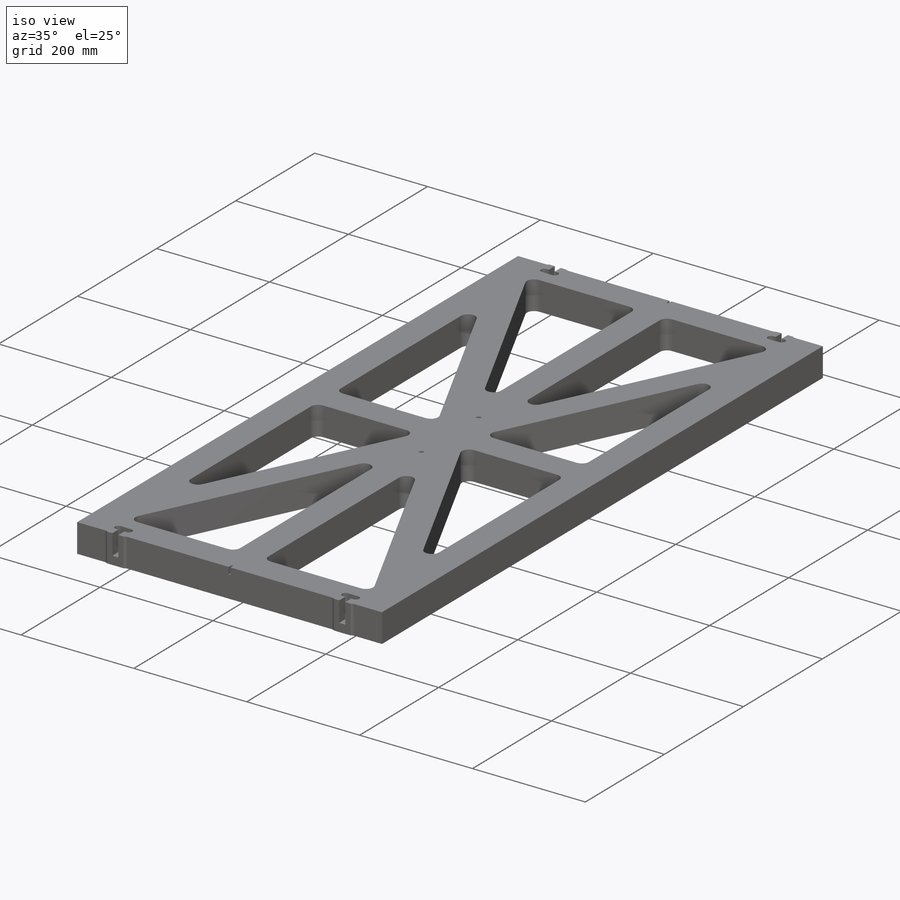
[diagram: iso view]
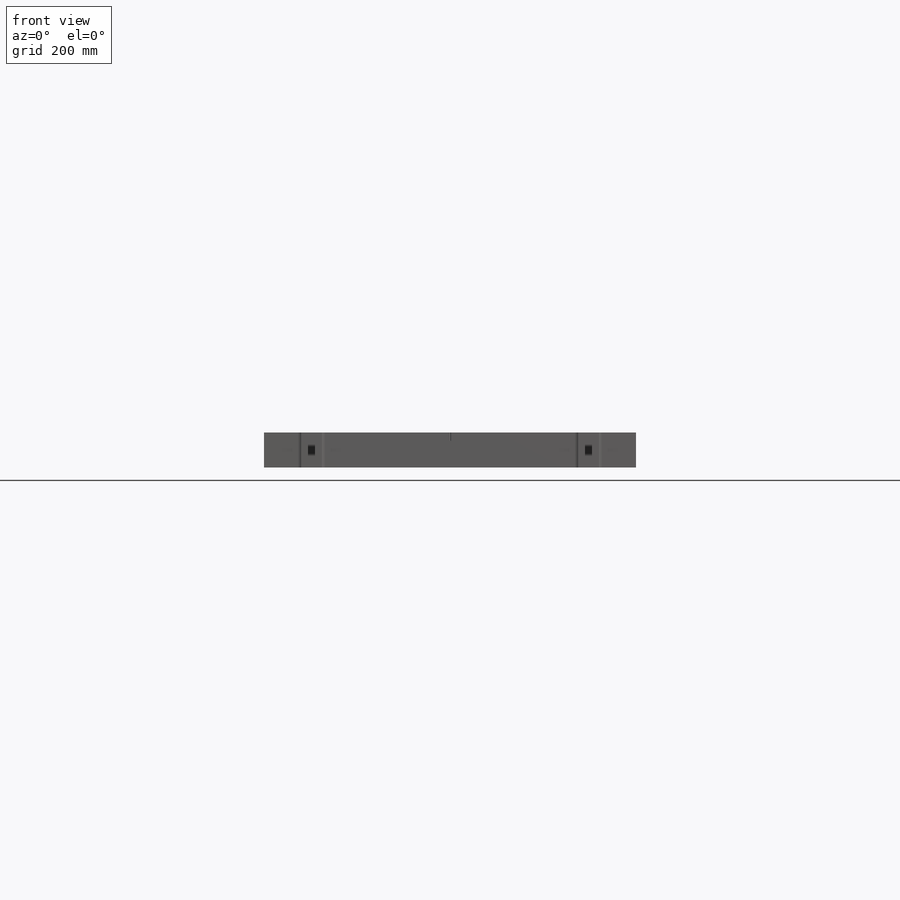
[diagram: front view]
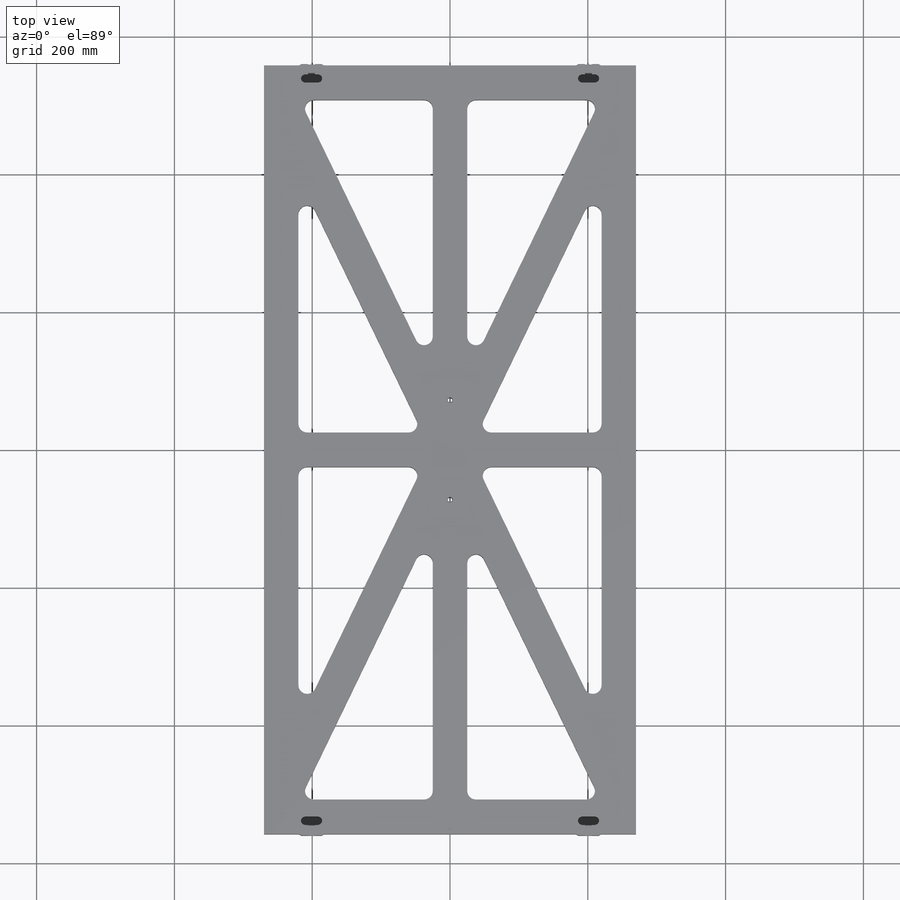
[diagram: top view]
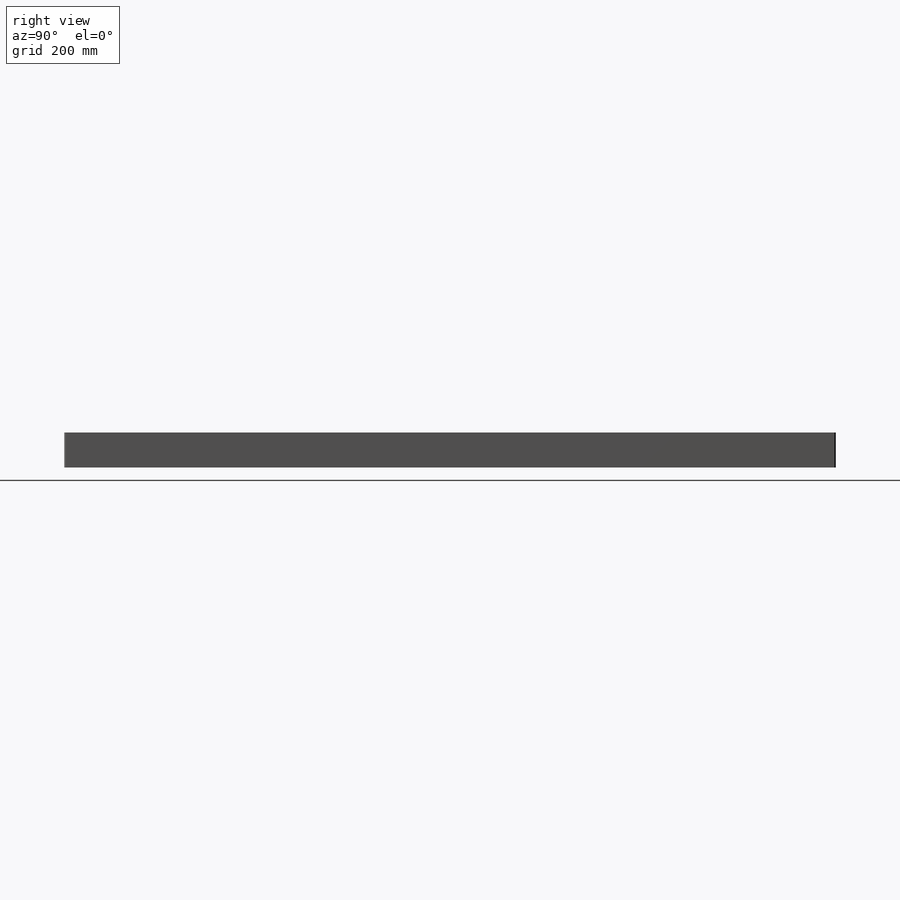
[diagram: right view]
SOLIDWORKS PART (.sldprt)
format: sldprt  version: not decoded by parser v0  size: 2,066,432 bytes
history: native  units: mm
features: sketch x10, mirror x7, cut_extrude x5, fillet x3, thread x2, material x1, extrude x1, hole x1 (+11 scaffold rows collapsed)
feature tree (41):
  scaffold x11  (default folders/planes/origin — collapsed)
  material  "6061 Alloy"
  sketch  "Sketch1"  dims[D1=2158.0mm D2=540.0mm]
  extrude  "Extrude1"  Depth=50.8mm
  sketch  "Sketch4"  dims[D1=487.5mm]
  hole  "Tapped Hole for 1/4-28 Helicoil1"  Diameter=6.6294mm Depth=50.8mm
  sketch  "3DSketch1"
  sketch  "Sketch5"  dims[hole-wizard template sketch: 46 standard entries collapsed; hole parameters kept: c15.Thru Tap Drill Dia.=6.6294mm c15.Thru Tap Drill Depth=50.8mm c15.Near C'Sink Dia.=8.8773mm c15.D4=~3.666174mm c15.Near C'Sink Angle=90.0deg c15.Far C'Sink Dia.=8.8773mm c15.D6=~9.919017mm c15.Far C'Sink Angle=90.0deg]
  thread  "Hole Thread1"  Diameter=23.38mm  [1 undecoded]
  thread  "Hole Thread2"  Diameter=23.38mm  [1 undecoded]
  sketch  "Sketch6"  dims[D1=50.0mm]
  sketch  "Sketch10"  dims[c1.D1=10.6mm c1.D2=68.0mm c1.D3=15.0mm c2.D2=69.0mm]
  cut_extrude  "Extrude4"  Depth=36mm
  sketch  "Sketch11"  dims[D2=6.0mm D1=4.0mm]
  cut_extrude  "Extrude5"  [1 undecoded]
  mirror  "Mirror3"
  mirror  "Mirror4"
  sketch  "Sketch12"  dims[D1=2.0mm D2=30.0mm]
  cut_extrude  "Extrude6"  [1 undecoded]
  mirror  "Mirror12"
  fillet  "Fillet2"  Radius=6.35mm
  mirror  "Mirror7"
  sketch  "Sketch13"  dims[D1=50.0mm]
  cut_extrude  "Extrude7"  [1 undecoded]
  fillet  "Fillet4"  Radius=12.7mm
  mirror  "Mirror8"
  mirror  "Mirror11"
  sketch  "Sketch14"  dims[D1=10.0mm D2=3.1877mm]
  cut_extrude  "Cut-Extrude1"  Depth=12mm
  fillet  "Fillet5"  Radius=1.5875mm
  mirror  "Mirror13"
decode coverage: 18 of 29 modeling features carry decoded parameters
note: ~ marks probable driven/reference dimensions
note: 5 parameter values undecoded
summary: no parameter record found for 3 features
note: suppression state not decoded; provenance and decode notes live in map.json
